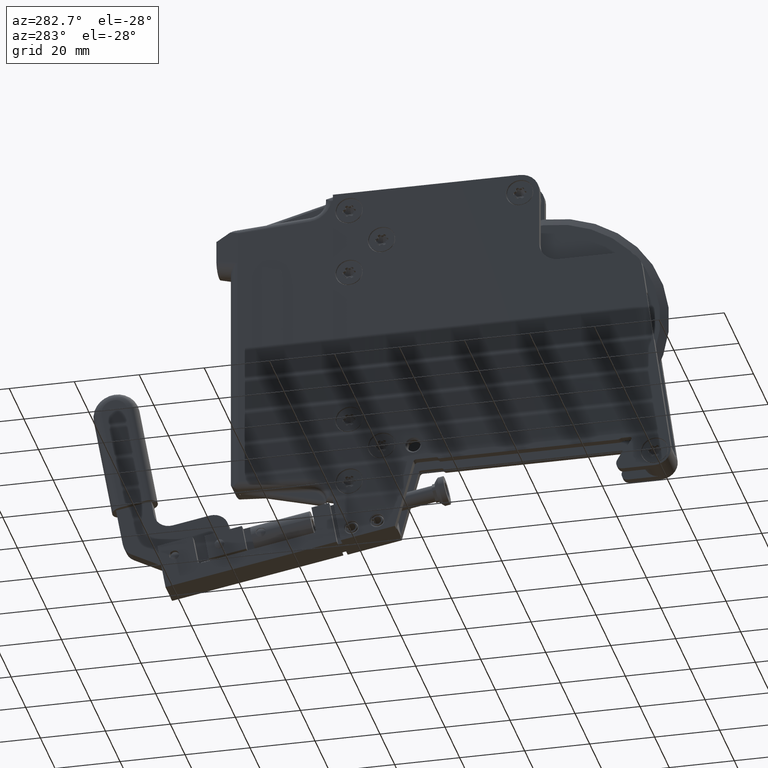
[diagram: clean part render]
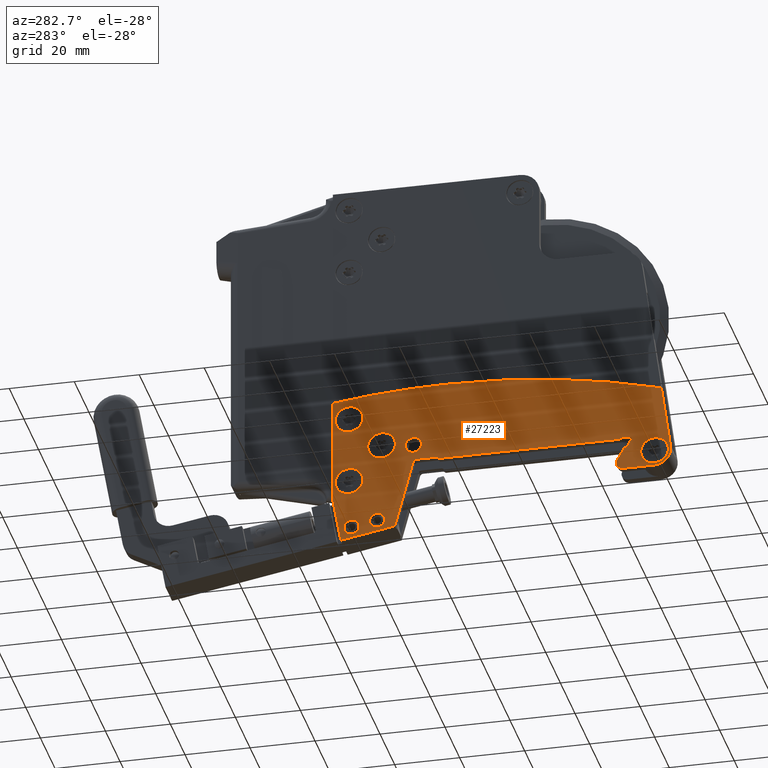
[diagram: same view with one face highlighted and labeled with its STEP entity id]
A machine part, auxiliary view. The second image highlights one B-rep face of the part: STEP entity #27223.
In plain terms, the highlighted planar face has unit normal (-1, -0, 0).
Its self-contained STEP definition (entity closure, byte-faithful):
#15 = EDGE_CURVE ( 'NONE', #7507, #25931, #11220, .T. ) ;
#149 = CARTESIAN_POINT ( 'NONE',  ( -6.829619984160659279E-17, -2.638184691622865063, -1.998031496062993462 ) ) ;
#365 = DIRECTION ( 'NONE',  ( -0.000000000000000000, 0.9205048534524431503, -0.3907311284892670544 ) ) ;
#587 = VERTEX_POINT ( 'NONE', #11150 ) ;
#616 = VERTEX_POINT ( 'NONE', #18726 ) ;
#991 = EDGE_CURVE ( 'NONE', #25934, #1060, #18488, .T. ) ;
#1060 = VERTEX_POINT ( 'NONE', #27123 ) ;
#1153 = DIRECTION ( 'NONE',  ( 0.000000000000000000, 1.000000000000000000, 0.000000000000000000 ) ) ;
#1375 = DIRECTION ( 'NONE',  ( 0.000000000000000000, 0.000000000000000000, -1.000000000000000000 ) ) ;
#1544 = CARTESIAN_POINT ( 'NONE',  ( 0.000000000000000000, -2.638184691622865063, -1.830708661417324024 ) ) ;
#2013 = CARTESIAN_POINT ( 'NONE',  ( 0.000000000000000000, 0.01142160758973210719, -1.653543307086614567 ) ) ;
#2143 = CARTESIAN_POINT ( 'NONE',  ( 0.000000000000000000, -2.183796822161156115, -1.909448818897637734 ) ) ;
#2300 = AXIS2_PLACEMENT_3D ( 'NONE', #12413, #18461, #33932 ) ;
#2344 = VERTEX_POINT ( 'NONE', #21496 ) ;
#2357 = DIRECTION ( 'NONE',  ( 0.000000000000000000, 1.000000000000000000, 2.122115463404056574E-15 ) ) ;
#2414 = CARTESIAN_POINT ( 'NONE',  ( 0.000000000000000000, 0.6689019225503620714, -1.210629921259842590 ) ) ;
#2500 = ORIENTED_EDGE ( 'NONE', *, *, #17787, .T. ) ;
#2512 = VERTEX_POINT ( 'NONE', #22682 ) ;
#2843 = EDGE_CURVE ( 'NONE', #35857, #25934, #12481, .T. ) ;
#2935 = ORIENTED_EDGE ( 'NONE', *, *, #25677, .F. ) ;
#3122 = LINE ( 'NONE', #8863, #26266 ) ;
#3253 = CARTESIAN_POINT ( 'NONE',  ( -6.829619984160659279E-17, -2.638184691622865063, -1.663385826771654585 ) ) ;
#3257 = CARTESIAN_POINT ( 'NONE',  ( 0.000000000000000000, -2.301608388249767767, -1.744763279453062976 ) ) ;
#3320 = CIRCLE ( 'NONE', #8392, 0.1673228346456694382 ) ;
#3328 = CARTESIAN_POINT ( 'NONE',  ( 0.000000000000000000, 0.2856194123966036003, -1.643353580901476318 ) ) ;
#3431 = ORIENTED_EDGE ( 'NONE', *, *, #18756, .F. ) ;
#3643 = EDGE_CURVE ( 'NONE', #36953, #2512, #17695, .T. ) ;
#3648 = LINE ( 'NONE', #36737, #22216 ) ;
#3664 = DIRECTION ( 'NONE',  ( 1.000000000000000000, 0.000000000000000000, -0.000000000000000000 ) ) ;
#3946 = ORIENTED_EDGE ( 'NONE', *, *, #9401, .T. ) ;
#3993 = DIRECTION ( 'NONE',  ( 1.000000000000000000, 0.000000000000000000, 0.000000000000000000 ) ) ;
#4152 = CARTESIAN_POINT ( 'NONE',  ( 0.000000000000000000, 1.062602709951936841, -0.9842519685039370358 ) ) ;
#4186 = DIRECTION ( 'NONE',  ( -1.000000000000000000, -0.000000000000000000, -0.000000000000000000 ) ) ;
#4306 = AXIS2_PLACEMENT_3D ( 'NONE', #14905, #26853, #23939 ) ;
#4818 = CARTESIAN_POINT ( 'NONE',  ( 0.000000000000000000, -2.183796822161156115, -1.909448818897637734 ) ) ;
#5182 = EDGE_LOOP ( 'NONE', ( #22620, #25960 ) ) ;
#5307 = CIRCLE ( 'NONE', #27198, 0.1673228346456694382 ) ;
#5953 = CARTESIAN_POINT ( 'NONE',  ( 0.000000000000000000, 1.032493468849913221, -2.519881508476508714 ) ) ;
#6098 = VECTOR ( 'NONE', #26394, 39.37007874015748143 ) ;
#6139 = EDGE_LOOP ( 'NONE', ( #24185, #18714 ) ) ;
#6491 = VERTEX_POINT ( 'NONE', #17442 ) ;
#6550 = CARTESIAN_POINT ( 'NONE',  ( 0.000000000000000000, -2.340636068515819623, -1.637795275590551380 ) ) ;
#6737 = VERTEX_POINT ( 'NONE', #12504 ) ;
#6855 = CARTESIAN_POINT ( 'NONE',  ( 0.000000000000000000, 1.163653405472534486, -2.590551181102362044 ) ) ;
#7123 = VECTOR ( 'NONE', #29847, 39.37007874015748143 ) ;
#7170 = ORIENTED_EDGE ( 'NONE', *, *, #19297, .F. ) ;
#7189 = AXIS2_PLACEMENT_3D ( 'NONE', #16179, #25033, #33994 ) ;
#7361 = AXIS2_PLACEMENT_3D ( 'NONE', #20674, #23256, #17315 ) ;
#7466 = CIRCLE ( 'NONE', #38112, 0.09842519685039269328 ) ;
#7507 = VERTEX_POINT ( 'NONE', #26099 ) ;
#7565 = ORIENTED_EDGE ( 'NONE', *, *, #15267, .F. ) ;
#7743 = CARTESIAN_POINT ( 'NONE',  ( 0.000000000000000000, 1.259453103652724337, -2.047244094488188892 ) ) ;
#8062 = AXIS2_PLACEMENT_3D ( 'NONE', #33336, #18456, #10082 ) ;
#8359 = EDGE_CURVE ( 'NONE', #16006, #9117, #17666, .T. ) ;
#8392 = AXIS2_PLACEMENT_3D ( 'NONE', #11415, #38574, #37807 ) ;
#8517 = EDGE_LOOP ( 'NONE', ( #24793, #36963 ) ) ;
#8602 = FACE_BOUND ( 'NONE', #37468, .T. ) ;
#8790 = CARTESIAN_POINT ( 'NONE',  ( 0.000000000000000000, -2.274718124395743502, -1.751968503937008093 ) ) ;
#8855 = VERTEX_POINT ( 'NONE', #33627 ) ;
#8863 = CARTESIAN_POINT ( 'NONE',  ( 0.000000000000000000, -2.638184691622865063, -2.027559055118111075 ) ) ;
#8988 = VECTOR ( 'NONE', #10618, 39.37007874015748854 ) ;
#8995 = DIRECTION ( 'NONE',  ( 1.000000000000000000, -0.000000000000000000, -0.000000000000000000 ) ) ;
#9093 = CARTESIAN_POINT ( 'NONE',  ( 0.000000000000000000, -2.202751620756724815, -1.633858267716535639 ) ) ;
#9117 = VERTEX_POINT ( 'NONE', #3253 ) ;
#9369 = DIRECTION ( 'NONE',  ( 0.000000000000000000, -0.5000000000000056621, 0.8660254037844353769 ) ) ;
#9401 = EDGE_CURVE ( 'NONE', #8855, #37616, #5307, .T. ) ;
#9581 = CIRCLE ( 'NONE', #38316, 0.03937007874015751446 ) ;
#9852 = CIRCLE ( 'NONE', #26107, 0.1968503937007870241 ) ;
#9933 = VERTEX_POINT ( 'NONE', #7743 ) ;
#10082 = DIRECTION ( 'NONE',  ( 0.000000000000000000, 0.000000000000000000, -1.000000000000000000 ) ) ;
#10112 = EDGE_LOOP ( 'NONE', ( #24372, #37399 ) ) ;
#10162 = EDGE_CURVE ( 'NONE', #1060, #29771, #13374, .T. ) ;
#10200 = VECTOR ( 'NONE', #365, 39.37007874015748854 ) ;
#10289 = DIRECTION ( 'NONE',  ( 0.000000000000000000, 0.000000000000000000, 1.000000000000000000 ) ) ;
#10310 = AXIS2_PLACEMENT_3D ( 'NONE', #6550, #38679, #21265 ) ;
#10523 = VECTOR ( 'NONE', #34202, 39.37007874015748854 ) ;
#10618 = DIRECTION ( 'NONE',  ( 0.000000000000000000, -0.5000000000000045519, 0.8660254037844359321 ) ) ;
#11113 = CARTESIAN_POINT ( 'NONE',  ( 0.000000000000000000, 1.062602709951936841, -1.811023622047244208 ) ) ;
#11116 = VERTEX_POINT ( 'NONE', #19977 ) ;
#11150 = CARTESIAN_POINT ( 'NONE',  ( 0.000000000000000000, -0.02267388074823777078, -1.633858267716535639 ) ) ;
#11220 = CIRCLE ( 'NONE', #8062, 0.1673228346456692994 ) ;
#11415 = CARTESIAN_POINT ( 'NONE',  ( 0.000000000000000000, 0.6689019225503620714, -1.377952755905512028 ) ) ;
#11579 = VERTEX_POINT ( 'NONE', #2414 ) ;
#11711 = CIRCLE ( 'NONE', #2300, 0.09237835281550239863 ) ;
#11741 = FACE_BOUND ( 'NONE', #8517, .T. ) ;
#11765 = EDGE_CURVE ( 'NONE', #6491, #11116, #18873, .T. ) ;
#11794 = EDGE_CURVE ( 'NONE', #19404, #18868, #11711, .T. ) ;
#11810 = LINE ( 'NONE', #3328, #38198 ) ;
#11884 = CARTESIAN_POINT ( 'NONE',  ( 0.000000000000000000, 1.259453103652724337, -2.047244094488188892 ) ) ;
#11912 = VERTEX_POINT ( 'NONE', #24660 ) ;
#11936 = AXIS2_PLACEMENT_3D ( 'NONE', #35800, #8995, #20928 ) ;
#12059 = EDGE_CURVE ( 'NONE', #12628, #587, #23297, .T. ) ;
#12111 = EDGE_CURVE ( 'NONE', #25931, #7507, #33603, .T. ) ;
#12413 = CARTESIAN_POINT ( 'NONE',  ( 0.000000000000000000, 1.032493468849913221, -2.427503155661006495 ) ) ;
#12481 = LINE ( 'NONE', #3257, #27510 ) ;
#12504 = CARTESIAN_POINT ( 'NONE',  ( -0.000000000000000000, -2.720774468545818170, -1.003937007874015297 ) ) ;
#12628 = VERTEX_POINT ( 'NONE', #14473 ) ;
#13037 = DIRECTION ( 'NONE',  ( 0.000000000000000000, 0.000000000000000000, -1.000000000000000000 ) ) ;
#13294 = LINE ( 'NONE', #27957, #10523 ) ;
#13309 = VERTEX_POINT ( 'NONE', #4818 ) ;
#13374 = LINE ( 'NONE', #28050, #35314 ) ;
#13656 = DIRECTION ( 'NONE',  ( 1.000000000000000000, 0.000000000000000000, -0.000000000000000000 ) ) ;
#13899 = EDGE_CURVE ( 'NONE', #11912, #30635, #3122, .T. ) ;
#14025 = DIRECTION ( 'NONE',  ( 0.000000000000000000, 0.000000000000000000, 1.000000000000000000 ) ) ;
#14081 = ORIENTED_EDGE ( 'NONE', *, *, #37193, .F. ) ;
#14473 = CARTESIAN_POINT ( 'NONE',  ( 0.000000000000000000, -2.202751620756724815, -1.633858267716535639 ) ) ;
#14790 = ORIENTED_EDGE ( 'NONE', *, *, #26300, .F. ) ;
#14796 = CARTESIAN_POINT ( 'NONE',  ( 0.000000000000000000, 0.6689019225503620714, -1.377952755905512028 ) ) ;
#14905 = CARTESIAN_POINT ( 'NONE',  ( -0.000000000000000000, -0.1122460368010346765, -10.49449932899949189 ) ) ;
#15042 = FACE_OUTER_BOUND ( 'NONE', #20719, .T. ) ;
#15180 = DIRECTION ( 'NONE',  ( 1.000000000000000000, 0.000000000000000000, -0.000000000000000000 ) ) ;
#15267 = EDGE_CURVE ( 'NONE', #37354, #2344, #20712, .T. ) ;
#15325 = LINE ( 'NONE', #9093, #10200 ) ;
#15558 = CARTESIAN_POINT ( 'NONE',  ( 0.000000000000000000, 0.2830751508968187280, -1.417322834645669216 ) ) ;
#15649 = EDGE_CURVE ( 'NONE', #11579, #31914, #26965, .T. ) ;
#15973 = CARTESIAN_POINT ( 'NONE',  ( 0.000000000000000000, -2.301608388249767767, -1.744763279453062976 ) ) ;
#16006 = VERTEX_POINT ( 'NONE', #149 ) ;
#16179 = CARTESIAN_POINT ( 'NONE',  ( 0.000000000000000000, 0.2475908365584512660, -1.653543307086614567 ) ) ;
#16425 = ORIENTED_EDGE ( 'NONE', *, *, #38266, .F. ) ;
#16451 = LINE ( 'NONE', #2143, #8988 ) ;
#16455 = CARTESIAN_POINT ( 'NONE',  ( 0.000000000000000000, 1.032493468849913221, -2.427503155661006495 ) ) ;
#16923 = CIRCLE ( 'NONE', #21684, 0.09237835281550239863 ) ;
#17179 = DIRECTION ( 'NONE',  ( 1.000000000000000000, 0.000000000000000000, -0.000000000000000000 ) ) ;
#17231 = ORIENTED_EDGE ( 'NONE', *, *, #35209, .T. ) ;
#17302 = EDGE_CURVE ( 'NONE', #31914, #11579, #3320, .T. ) ;
#17315 = DIRECTION ( 'NONE',  ( 0.000000000000000000, 0.000000000000000000, 1.000000000000000000 ) ) ;
#17332 = AXIS2_PLACEMENT_3D ( 'NONE', #29291, #38305, #23078 ) ;
#17347 = EDGE_LOOP ( 'NONE', ( #3946, #17231 ) ) ;
#17442 = CARTESIAN_POINT ( 'NONE',  ( 0.000000000000000000, 0.5084647614241869507, -2.475023745702846334 ) ) ;
#17666 = CIRCLE ( 'NONE', #29547, 0.1673228346456694382 ) ;
#17695 = CIRCLE ( 'NONE', #33321, 0.09237835281550185740 ) ;
#17724 = VERTEX_POINT ( 'NONE', #18154 ) ;
#17787 = EDGE_CURVE ( 'NONE', #616, #17724, #24239, .T. ) ;
#17857 = VECTOR ( 'NONE', #21153, 39.37007874015748143 ) ;
#17976 = AXIS2_PLACEMENT_3D ( 'NONE', #4152, #18466, #1375 ) ;
#18034 = DIRECTION ( 'NONE',  ( 0.000000000000000000, 0.2588190451025181305, -0.9659258262890689783 ) ) ;
#18154 = CARTESIAN_POINT ( 'NONE',  ( 0.000000000000000000, 0.2830751508968187280, -1.515748031496061854 ) ) ;
#18409 = VERTEX_POINT ( 'NONE', #33324 ) ;
#18456 = DIRECTION ( 'NONE',  ( 1.000000000000000000, 0.000000000000000000, -0.000000000000000000 ) ) ;
#18461 = DIRECTION ( 'NONE',  ( 1.000000000000000000, 0.000000000000000000, -0.000000000000000000 ) ) ;
#18466 = DIRECTION ( 'NONE',  ( 1.000000000000000000, 0.000000000000000000, -0.000000000000000000 ) ) ;
#18488 = CIRCLE ( 'NONE', #10310, 0.01968503937007903132 ) ;
#18525 = EDGE_CURVE ( 'NONE', #32243, #11912, #9852, .T. ) ;
#18678 = EDGE_CURVE ( 'NONE', #2512, #36953, #34848, .T. ) ;
#18714 = ORIENTED_EDGE ( 'NONE', *, *, #15, .T. ) ;
#18726 = CARTESIAN_POINT ( 'NONE',  ( 0.000000000000000000, 0.2830751508968187280, -1.318897637795276578 ) ) ;
#18756 = EDGE_CURVE ( 'NONE', #6737, #32243, #13294, .T. ) ;
#18868 = VERTEX_POINT ( 'NONE', #26963 ) ;
#18873 = LINE ( 'NONE', #22032, #30412 ) ;
#18924 = CIRCLE ( 'NONE', #36422, 0.07874015748031476525 ) ;
#19086 = DIRECTION ( 'NONE',  ( 0.000000000000000000, 0.000000000000000000, -1.000000000000000000 ) ) ;
#19297 = EDGE_CURVE ( 'NONE', #9117, #16006, #34300, .T. ) ;
#19404 = VERTEX_POINT ( 'NONE', #5953 ) ;
#19511 = EDGE_CURVE ( 'NONE', #2344, #6737, #38701, .T. ) ;
#19709 = DIRECTION ( 'NONE',  ( 0.000000000000000000, 0.000000000000000000, -1.000000000000000000 ) ) ;
#19977 = CARTESIAN_POINT ( 'NONE',  ( 0.000000000000000000, 1.163653405472534486, -2.590551181102362044 ) ) ;
#20177 = CARTESIAN_POINT ( 'NONE',  ( 0.000000000000000000, 1.062602709951936841, -1.151574803149606474 ) ) ;
#20465 = ORIENTED_EDGE ( 'NONE', *, *, #11765, .F. ) ;
#20478 = EDGE_CURVE ( 'NONE', #18868, #19404, #16923, .T. ) ;
#20575 = AXIS2_PLACEMENT_3D ( 'NONE', #23264, #23460, #29652 ) ;
#20647 = VERTEX_POINT ( 'NONE', #8790 ) ;
#20674 = CARTESIAN_POINT ( 'NONE',  ( 0.000000000000000000, 0.2475908365584512660, -1.653543307086614567 ) ) ;
#20712 = CIRCLE ( 'NONE', #11936, 9.842519685039368582 ) ;
#20719 = EDGE_LOOP ( 'NONE', ( #7565, #37490, #33705, #20465, #16425, #30544, #33281, #33869, #38262, #2935, #30795, #24989, #23418, #14081, #14790, #34499, #30311, #35627, #3431, #36012 ) ) ;
#20736 = FACE_BOUND ( 'NONE', #6139, .T. ) ;
#20919 = LINE ( 'NONE', #35791, #23741 ) ;
#20928 = DIRECTION ( 'NONE',  ( 0.000000000000000000, 0.000000000000000000, 1.000000000000000000 ) ) ;
#21153 = DIRECTION ( 'NONE',  ( 0.000000000000000000, 0.1736481776669307475, 0.9848077530122080203 ) ) ;
#21265 = DIRECTION ( 'NONE',  ( 0.000000000000000000, 0.000000000000000000, -1.000000000000000000 ) ) ;
#21496 = CARTESIAN_POINT ( 'NONE',  ( 0.000000000000000000, -0.1122460368010346765, -0.6519796439601229787 ) ) ;
#21684 = AXIS2_PLACEMENT_3D ( 'NONE', #16455, #17179, #28404 ) ;
#21855 = DIRECTION ( 'NONE',  ( 1.000000000000000000, 0.000000000000000000, -0.000000000000000000 ) ) ;
#22032 = CARTESIAN_POINT ( 'NONE',  ( 0.000000000000000000, 1.163653405472534486, -2.590551181102362044 ) ) ;
#22216 = VECTOR ( 'NONE', #28152, 39.37007874015748143 ) ;
#22442 = CARTESIAN_POINT ( 'NONE',  ( 0.000000000000000000, 0.7223177986098473502, -2.372810816238352327 ) ) ;
#22620 = ORIENTED_EDGE ( 'NONE', *, *, #17302, .T. ) ;
#22682 = CARTESIAN_POINT ( 'NONE',  ( 0.000000000000000000, 0.7223177986098473502, -2.280432463422850553 ) ) ;
#23078 = DIRECTION ( 'NONE',  ( 0.000000000000000000, 0.000000000000000000, 1.000000000000000000 ) ) ;
#23256 = DIRECTION ( 'NONE',  ( -1.000000000000000000, -0.000000000000000000, 0.000000000000000000 ) ) ;
#23264 = CARTESIAN_POINT ( 'NONE',  ( -6.829619984160659279E-17, -2.638184691622865063, -1.830708661417324024 ) ) ;
#23297 = LINE ( 'NONE', #26583, #6098 ) ;
#23352 = CARTESIAN_POINT ( 'NONE',  ( 0.000000000000000000, -2.239851658013792157, -1.618110236220472675 ) ) ;
#23418 = ORIENTED_EDGE ( 'NONE', *, *, #2843, .F. ) ;
#23460 = DIRECTION ( 'NONE',  ( -1.000000000000000000, -0.000000000000000000, -0.000000000000000000 ) ) ;
#23696 = FACE_BOUND ( 'NONE', #10112, .T. ) ;
#23741 = VECTOR ( 'NONE', #33224, 39.37007874015748854 ) ;
#23939 = DIRECTION ( 'NONE',  ( 0.000000000000000000, 0.000000000000000000, 1.000000000000000000 ) ) ;
#24185 = ORIENTED_EDGE ( 'NONE', *, *, #12111, .T. ) ;
#24239 = CIRCLE ( 'NONE', #17332, 0.09842519685039269328 ) ;
#24290 = CARTESIAN_POINT ( 'NONE',  ( 0.000000000000000000, 0.7223177986098473502, -2.465189169053854101 ) ) ;
#24372 = ORIENTED_EDGE ( 'NONE', *, *, #18678, .T. ) ;
#24397 = DIRECTION ( 'NONE',  ( 0.000000000000000000, 0.000000000000000000, 1.000000000000000000 ) ) ;
#24650 = DIRECTION ( 'NONE',  ( 0.000000000000000000, 0.000000000000000000, 1.000000000000000000 ) ) ;
#24660 = CARTESIAN_POINT ( 'NONE',  ( 0.000000000000000000, -2.638184691622865063, -2.027559055118111075 ) ) ;
#24793 = ORIENTED_EDGE ( 'NONE', *, *, #20478, .T. ) ;
#24989 = ORIENTED_EDGE ( 'NONE', *, *, #991, .F. ) ;
#25033 = DIRECTION ( 'NONE',  ( -1.000000000000000000, -0.000000000000000000, 0.000000000000000000 ) ) ;
#25450 = EDGE_CURVE ( 'NONE', #30635, #13309, #18924, .T. ) ;
#25492 = EDGE_CURVE ( 'NONE', #587, #29248, #9581, .T. ) ;
#25677 = EDGE_CURVE ( 'NONE', #29771, #12628, #15325, .T. ) ;
#25931 = VERTEX_POINT ( 'NONE', #20177 ) ;
#25934 = VERTEX_POINT ( 'NONE', #26620 ) ;
#25960 = ORIENTED_EDGE ( 'NONE', *, *, #15649, .T. ) ;
#26099 = CARTESIAN_POINT ( 'NONE',  ( 0.000000000000000000, 1.062602709951936841, -0.8169291338582678197 ) ) ;
#26107 = AXIS2_PLACEMENT_3D ( 'NONE', #1544, #34686, #37623 ) ;
#26132 = DIRECTION ( 'NONE',  ( 0.000000000000000000, 0.000000000000000000, -1.000000000000000000 ) ) ;
#26266 = VECTOR ( 'NONE', #2357, 39.37007874015748143 ) ;
#26300 = EDGE_CURVE ( 'NONE', #13309, #20647, #16451, .T. ) ;
#26394 = DIRECTION ( 'NONE',  ( 0.000000000000000000, 1.000000000000000000, 0.000000000000000000 ) ) ;
#26583 = CARTESIAN_POINT ( 'NONE',  ( 0.000000000000000000, -2.202751620756724815, -1.633858267716535639 ) ) ;
#26620 = CARTESIAN_POINT ( 'NONE',  ( 0.000000000000000000, -2.357683812684804980, -1.647637795275590733 ) ) ;
#26699 = CIRCLE ( 'NONE', #31686, 0.1673228346456694382 ) ;
#26853 = DIRECTION ( 'NONE',  ( 1.000000000000000000, -0.000000000000000000, -0.000000000000000000 ) ) ;
#26963 = CARTESIAN_POINT ( 'NONE',  ( 0.000000000000000000, 1.032493468849913221, -2.335124802845503833 ) ) ;
#26965 = CIRCLE ( 'NONE', #27577, 0.1673228346456694382 ) ;
#27123 = CARTESIAN_POINT ( 'NONE',  ( 0.000000000000000000, -2.340636068515820067, -1.618110236220472453 ) ) ;
#27198 = AXIS2_PLACEMENT_3D ( 'NONE', #34135, #21855, #19086 ) ;
#27207 = CARTESIAN_POINT ( 'NONE',  ( 0.000000000000000000, 0.01142160758973211065, -1.614173228346457156 ) ) ;
#27223 = ADVANCED_FACE ( 'NONE', ( #35402, #8602, #15042, #32467, #11741, #23696, #20736, #29702 ), #32651, .T. ) ;
#27510 = VECTOR ( 'NONE', #9369, 39.37007874015748854 ) ;
#27544 = CARTESIAN_POINT ( 'NONE',  ( 0.000000000000000000, 0.2475908365584510162, -1.614173228346457156 ) ) ;
#27577 = AXIS2_PLACEMENT_3D ( 'NONE', #14796, #32395, #29265 ) ;
#27583 = EDGE_CURVE ( 'NONE', #9933, #37354, #35168, .T. ) ;
#27938 = CARTESIAN_POINT ( 'NONE',  ( 0.000000000000000000, 1.259453103652724337, -0.7480314960629920185 ) ) ;
#27957 = CARTESIAN_POINT ( 'NONE',  ( 0.000000000000000000, -2.486530308592621363, 0.6627967955023753577 ) ) ;
#28050 = CARTESIAN_POINT ( 'NONE',  ( 0.000000000000000000, -2.340636068515820067, -1.618110236220472675 ) ) ;
#28072 = DIRECTION ( 'NONE',  ( -0.000000000000000000, 0.9848077530122085754, -0.1736481776669268062 ) ) ;
#28152 = DIRECTION ( 'NONE',  ( 0.000000000000000000, 1.000000000000000000, 0.000000000000000000 ) ) ;
#28325 = CARTESIAN_POINT ( 'NONE',  ( 0.000000000000000000, 0.6689019225503620714, -1.545275590551181466 ) ) ;
#28342 = EDGE_CURVE ( 'NONE', #29248, #37238, #3648, .T. ) ;
#28404 = DIRECTION ( 'NONE',  ( 0.000000000000000000, 0.000000000000000000, 1.000000000000000000 ) ) ;
#28474 = DIRECTION ( 'NONE',  ( -1.000000000000000000, -0.000000000000000000, -0.000000000000000000 ) ) ;
#28543 = EDGE_LOOP ( 'NONE', ( #2500, #32906 ) ) ;
#29192 = CIRCLE ( 'NONE', #7361, 0.03937007874015751446 ) ;
#29248 = VERTEX_POINT ( 'NONE', #27207 ) ;
#29260 = EDGE_CURVE ( 'NONE', #11116, #9933, #33657, .T. ) ;
#29265 = DIRECTION ( 'NONE',  ( 0.000000000000000000, 0.000000000000000000, -1.000000000000000000 ) ) ;
#29291 = CARTESIAN_POINT ( 'NONE',  ( 0.000000000000000000, 0.2830751508968187280, -1.417322834645669216 ) ) ;
#29415 = CARTESIAN_POINT ( 'NONE',  ( 0.000000000000000000, -2.251987798837095767, -2.027559055118110187 ) ) ;
#29547 = AXIS2_PLACEMENT_3D ( 'NONE', #34552, #4186, #14025 ) ;
#29652 = DIRECTION ( 'NONE',  ( 0.000000000000000000, 0.000000000000000000, 1.000000000000000000 ) ) ;
#29702 = FACE_BOUND ( 'NONE', #5182, .T. ) ;
#29771 = VERTEX_POINT ( 'NONE', #23352 ) ;
#29821 = AXIS2_PLACEMENT_3D ( 'NONE', #32325, #3664, #24650 ) ;
#29847 = DIRECTION ( 'NONE',  ( 0.000000000000000000, 0.000000000000000000, 1.000000000000000000 ) ) ;
#30311 = ORIENTED_EDGE ( 'NONE', *, *, #13899, .F. ) ;
#30412 = VECTOR ( 'NONE', #28072, 39.37007874015748854 ) ;
#30544 = ORIENTED_EDGE ( 'NONE', *, *, #35284, .F. ) ;
#30635 = VERTEX_POINT ( 'NONE', #29415 ) ;
#30795 = ORIENTED_EDGE ( 'NONE', *, *, #10162, .F. ) ;
#31025 = CARTESIAN_POINT ( 'NONE',  ( 0.000000000000000000, -2.251987798837095767, -1.948818897637795367 ) ) ;
#31686 = AXIS2_PLACEMENT_3D ( 'NONE', #11113, #13656, #19709 ) ;
#31914 = VERTEX_POINT ( 'NONE', #28325 ) ;
#32243 = VERTEX_POINT ( 'NONE', #36059 ) ;
#32325 = CARTESIAN_POINT ( 'NONE',  ( 0.000000000000000000, 0.7223177986098473502, -2.372810816238352327 ) ) ;
#32395 = DIRECTION ( 'NONE',  ( 1.000000000000000000, 0.000000000000000000, -0.000000000000000000 ) ) ;
#32467 = FACE_BOUND ( 'NONE', #17347, .T. ) ;
#32532 = ORIENTED_EDGE ( 'NONE', *, *, #8359, .F. ) ;
#32651 = PLANE ( 'NONE',  #7189 ) ;
#32906 = ORIENTED_EDGE ( 'NONE', *, *, #37505, .T. ) ;
#33224 = DIRECTION ( 'NONE',  ( 0.000000000000000000, -0.9659258262890719759, 0.2588190451025065286 ) ) ;
#33281 = ORIENTED_EDGE ( 'NONE', *, *, #28342, .F. ) ;
#33321 = AXIS2_PLACEMENT_3D ( 'NONE', #22442, #34346, #10289 ) ;
#33324 = CARTESIAN_POINT ( 'NONE',  ( 0.000000000000000000, 0.2856194123966036558, -1.643353580901476318 ) ) ;
#33336 = CARTESIAN_POINT ( 'NONE',  ( 0.000000000000000000, 1.062602709951936841, -0.9842519685039370358 ) ) ;
#33552 = CARTESIAN_POINT ( 'NONE',  ( 0.000000000000000000, 1.062602709951936841, -1.643700787401574770 ) ) ;
#33603 = CIRCLE ( 'NONE', #17976, 0.1673228346456692994 ) ;
#33627 = CARTESIAN_POINT ( 'NONE',  ( 0.000000000000000000, 1.062602709951936841, -1.978346456692913646 ) ) ;
#33657 = LINE ( 'NONE', #6855, #17857 ) ;
#33705 = ORIENTED_EDGE ( 'NONE', *, *, #29260, .F. ) ;
#33869 = ORIENTED_EDGE ( 'NONE', *, *, #25492, .F. ) ;
#33932 = DIRECTION ( 'NONE',  ( 0.000000000000000000, 0.000000000000000000, 1.000000000000000000 ) ) ;
#33994 = DIRECTION ( 'NONE',  ( 0.000000000000000000, 0.000000000000000000, 1.000000000000000000 ) ) ;
#34135 = CARTESIAN_POINT ( 'NONE',  ( 0.000000000000000000, 1.062602709951936841, -1.811023622047244208 ) ) ;
#34202 = DIRECTION ( 'NONE',  ( 0.000000000000000000, -0.1391731009600580549, -0.9902680687415712502 ) ) ;
#34300 = CIRCLE ( 'NONE', #20575, 0.1673228346456694382 ) ;
#34346 = DIRECTION ( 'NONE',  ( 1.000000000000000000, 0.000000000000000000, -0.000000000000000000 ) ) ;
#34499 = ORIENTED_EDGE ( 'NONE', *, *, #25450, .F. ) ;
#34552 = CARTESIAN_POINT ( 'NONE',  ( -6.829619984160659279E-17, -2.638184691622865063, -1.830708661417324024 ) ) ;
#34686 = DIRECTION ( 'NONE',  ( 1.000000000000000000, 0.000000000000000000, 0.000000000000000000 ) ) ;
#34848 = CIRCLE ( 'NONE', #29821, 0.09237835281550185740 ) ;
#35168 = LINE ( 'NONE', #11884, #7123 ) ;
#35209 = EDGE_CURVE ( 'NONE', #37616, #8855, #26699, .T. ) ;
#35284 = EDGE_CURVE ( 'NONE', #37238, #18409, #29192, .T. ) ;
#35314 = VECTOR ( 'NONE', #1153, 39.37007874015748143 ) ;
#35402 = FACE_BOUND ( 'NONE', #28543, .T. ) ;
#35627 = ORIENTED_EDGE ( 'NONE', *, *, #18525, .F. ) ;
#35791 = CARTESIAN_POINT ( 'NONE',  ( 0.000000000000000000, -2.274718124395743502, -1.751968503937008093 ) ) ;
#35800 = CARTESIAN_POINT ( 'NONE',  ( -0.000000000000000000, -0.1122460368010346765, -10.49449932899949189 ) ) ;
#35857 = VERTEX_POINT ( 'NONE', #15973 ) ;
#36012 = ORIENTED_EDGE ( 'NONE', *, *, #19511, .F. ) ;
#36059 = CARTESIAN_POINT ( 'NONE',  ( 0.000000000000000000, -2.833119350823961380, -1.803312381700776346 ) ) ;
#36422 = AXIS2_PLACEMENT_3D ( 'NONE', #31025, #3993, #13037 ) ;
#36737 = CARTESIAN_POINT ( 'NONE',  ( 0.000000000000000000, 0.01142160758973210719, -1.614173228346457156 ) ) ;
#36953 = VERTEX_POINT ( 'NONE', #24290 ) ;
#36963 = ORIENTED_EDGE ( 'NONE', *, *, #11794, .T. ) ;
#37193 = EDGE_CURVE ( 'NONE', #20647, #35857, #20919, .T. ) ;
#37238 = VERTEX_POINT ( 'NONE', #27544 ) ;
#37354 = VERTEX_POINT ( 'NONE', #27938 ) ;
#37399 = ORIENTED_EDGE ( 'NONE', *, *, #3643, .T. ) ;
#37468 = EDGE_LOOP ( 'NONE', ( #7170, #32532 ) ) ;
#37490 = ORIENTED_EDGE ( 'NONE', *, *, #27583, .F. ) ;
#37505 = EDGE_CURVE ( 'NONE', #17724, #616, #7466, .T. ) ;
#37616 = VERTEX_POINT ( 'NONE', #33552 ) ;
#37623 = DIRECTION ( 'NONE',  ( 0.000000000000000000, 0.000000000000000000, -1.000000000000000000 ) ) ;
#37807 = DIRECTION ( 'NONE',  ( 0.000000000000000000, 0.000000000000000000, -1.000000000000000000 ) ) ;
#38112 = AXIS2_PLACEMENT_3D ( 'NONE', #15558, #15180, #24397 ) ;
#38198 = VECTOR ( 'NONE', #18034, 39.37007874015748143 ) ;
#38262 = ORIENTED_EDGE ( 'NONE', *, *, #12059, .F. ) ;
#38266 = EDGE_CURVE ( 'NONE', #18409, #6491, #11810, .T. ) ;
#38305 = DIRECTION ( 'NONE',  ( 1.000000000000000000, 0.000000000000000000, -0.000000000000000000 ) ) ;
#38316 = AXIS2_PLACEMENT_3D ( 'NONE', #2013, #28474, #26132 ) ;
#38574 = DIRECTION ( 'NONE',  ( 1.000000000000000000, 0.000000000000000000, -0.000000000000000000 ) ) ;
#38679 = DIRECTION ( 'NONE',  ( -1.000000000000000000, -0.000000000000000000, -0.000000000000000000 ) ) ;
#38701 = CIRCLE ( 'NONE', #4306, 9.842519685039368582 ) ;